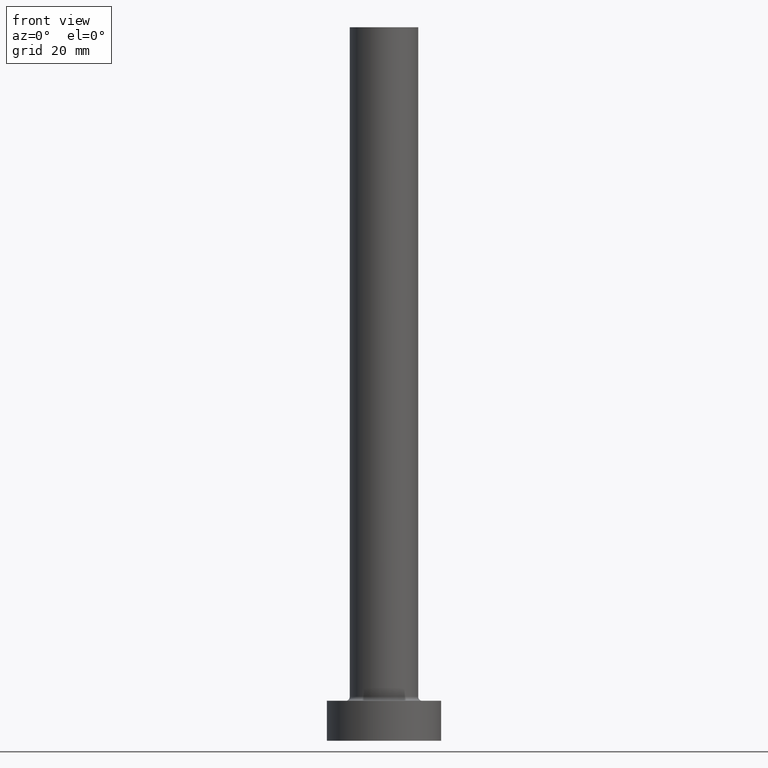
[diagram: clean part render]
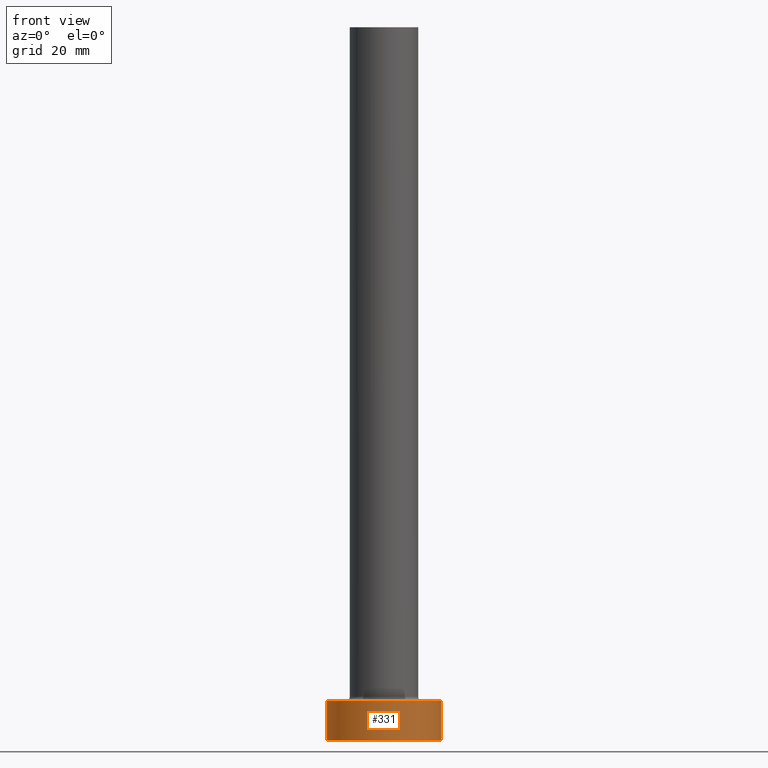
[diagram: same view with one face highlighted and labeled with its STEP entity id]
A machine part, front view. The second image highlights one B-rep face of the part: STEP entity #331.
In plain terms, the highlighted cylindrical surface (partial cylindrical patch) has radius 10 mm, axis along (-0, -0, -1).
Its self-contained STEP definition (entity closure, byte-faithful):
#19 = LINE ( 'NONE', #161, #390 ) ;
#31 = CIRCLE ( 'NONE', #457, 10.00000000000000000 ) ;
#33 = LINE ( 'NONE', #172, #211 ) ;
#38 = DIRECTION ( 'NONE',  ( 1.000000000000000000, 0.000000000000000000, 0.000000000000000000 ) ) ;
#40 = DIRECTION ( 'NONE',  ( 0.000000000000000000, 0.000000000000000000, 1.000000000000000000 ) ) ;
#57 = EDGE_LOOP ( 'NONE', ( #297, #437, #134, #366 ) ) ;
#59 = DIRECTION ( 'NONE',  ( -0.000000000000000000, -0.000000000000000000, -1.000000000000000000 ) ) ;
#83 = CARTESIAN_POINT ( 'NONE',  ( 0.000000000000000000, 0.000000000000000000, 7.000000000000000000 ) ) ;
#92 = CYLINDRICAL_SURFACE ( 'NONE', #432, 10.00000000000000000 ) ;
#104 = DIRECTION ( 'NONE',  ( -0.000000000000000000, -0.000000000000000000, -1.000000000000000000 ) ) ;
#134 = ORIENTED_EDGE ( 'NONE', *, *, #253, .T. ) ;
#135 = CARTESIAN_POINT ( 'NONE',  ( -10.00000000000000000, 0.000000000000000000, 0.000000000000000000 ) ) ;
#161 = CARTESIAN_POINT ( 'NONE',  ( -10.00000000000000000, 0.000000000000000000, 7.000000000000000000 ) ) ;
#166 = EDGE_CURVE ( 'NONE', #375, #191, #274, .T. ) ;
#172 = CARTESIAN_POINT ( 'NONE',  ( 10.00000000000000000, 1.224646799147353256E-15, 7.000000000000000000 ) ) ;
#177 = CARTESIAN_POINT ( 'NONE',  ( 10.00000000000000000, 1.224646799147353256E-15, 0.000000000000000000 ) ) ;
#191 = VERTEX_POINT ( 'NONE', #177 ) ;
#208 = VERTEX_POINT ( 'NONE', #291 ) ;
#211 = VECTOR ( 'NONE', #59, 1000.000000000000000 ) ;
#215 = CARTESIAN_POINT ( 'NONE',  ( 0.000000000000000000, 0.000000000000000000, 0.000000000000000000 ) ) ;
#244 = CARTESIAN_POINT ( 'NONE',  ( 0.000000000000000000, 0.000000000000000000, 7.000000000000000000 ) ) ;
#246 = DIRECTION ( 'NONE',  ( -1.000000000000000000, 0.000000000000000000, 0.000000000000000000 ) ) ;
#253 = EDGE_CURVE ( 'NONE', #327, #375, #19, .T. ) ;
#274 = CIRCLE ( 'NONE', #401, 10.00000000000000000 ) ;
#275 = DIRECTION ( 'NONE',  ( -0.000000000000000000, -0.000000000000000000, -1.000000000000000000 ) ) ;
#280 = FACE_OUTER_BOUND ( 'NONE', #57, .T. ) ;
#291 = CARTESIAN_POINT ( 'NONE',  ( 10.00000000000000000, 1.224646799147353256E-15, 7.000000000000000000 ) ) ;
#297 = ORIENTED_EDGE ( 'NONE', *, *, #356, .F. ) ;
#318 = DIRECTION ( 'NONE',  ( 0.000000000000000000, 0.000000000000000000, 1.000000000000000000 ) ) ;
#327 = VERTEX_POINT ( 'NONE', #409 ) ;
#331 = ADVANCED_FACE ( 'NONE', ( #280 ), #92, .T. ) ;
#356 = EDGE_CURVE ( 'NONE', #208, #191, #33, .T. ) ;
#366 = ORIENTED_EDGE ( 'NONE', *, *, #166, .T. ) ;
#375 = VERTEX_POINT ( 'NONE', #135 ) ;
#390 = VECTOR ( 'NONE', #275, 1000.000000000000000 ) ;
#401 = AXIS2_PLACEMENT_3D ( 'NONE', #215, #318, #38 ) ;
#409 = CARTESIAN_POINT ( 'NONE',  ( -10.00000000000000000, 0.000000000000000000, 7.000000000000000000 ) ) ;
#432 = AXIS2_PLACEMENT_3D ( 'NONE', #244, #104, #246 ) ;
#437 = ORIENTED_EDGE ( 'NONE', *, *, #459, .F. ) ;
#457 = AXIS2_PLACEMENT_3D ( 'NONE', #83, #40, #458 ) ;
#458 = DIRECTION ( 'NONE',  ( 1.000000000000000000, 0.000000000000000000, 0.000000000000000000 ) ) ;
#459 = EDGE_CURVE ( 'NONE', #327, #208, #31, .T. ) ;